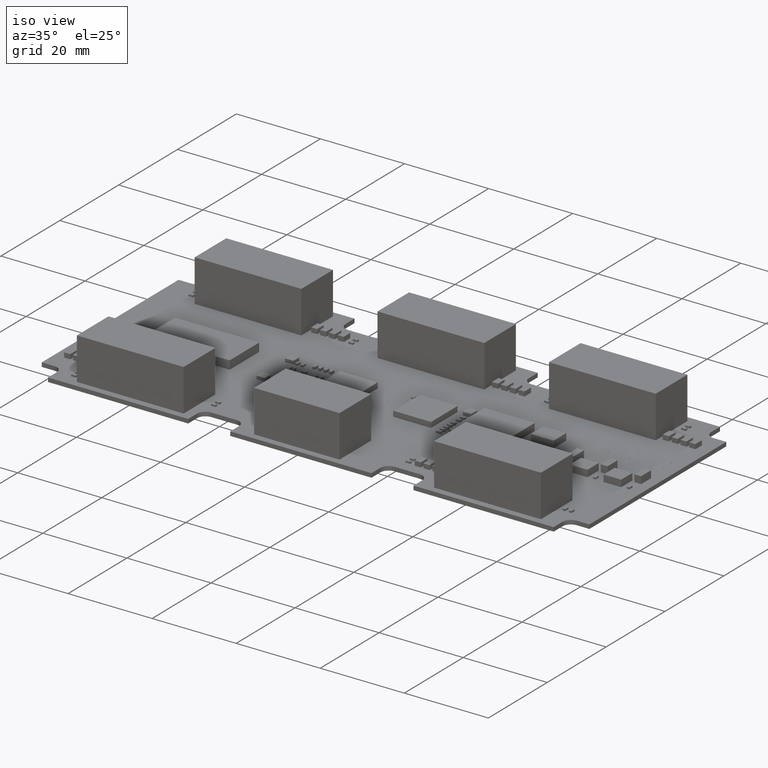
[diagram: clean part render]
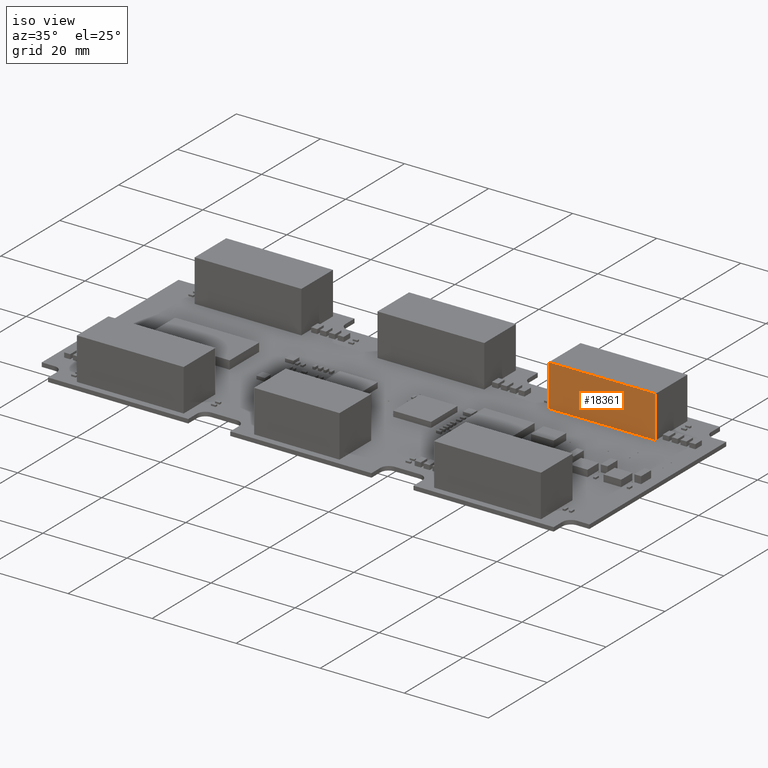
[diagram: same view with one face highlighted and labeled with its STEP entity id]
A machine part, iso view. The second image highlights one B-rep face of the part: STEP entity #18361.
In plain terms, the highlighted planar face has unit normal (0, -1, 0).
Its self-contained STEP definition (entity closure, byte-faithful):
#18263 = EDGE_CURVE('',#18264,#18266,#18268,.T.);
#18264 = VERTEX_POINT('',#18265);
#18265 = CARTESIAN_POINT('',(-12.699492,-5.36949142,0.E+000));
#18266 = VERTEX_POINT('',#18267);
#18267 = CARTESIAN_POINT('',(-12.699492,-5.36949142,10.00000032));
#18268 = LINE('',#18269,#18270);
#18269 = CARTESIAN_POINT('',(-12.699492,-5.36949142,0.E+000));
#18270 = VECTOR('',#18271,1.);
#18271 = DIRECTION('',(0.E+000,0.E+000,1.));
#18336 = VERTEX_POINT('',#18337);
#18337 = CARTESIAN_POINT('',(12.699492,-5.36949142,10.00000032));
#18343 = EDGE_CURVE('',#18344,#18336,#18346,.T.);
#18344 = VERTEX_POINT('',#18345);
#18345 = CARTESIAN_POINT('',(12.699492,-5.36949142,0.E+000));
#18346 = LINE('',#18347,#18348);
#18347 = CARTESIAN_POINT('',(12.699492,-5.36949142,0.E+000));
#18348 = VECTOR('',#18349,1.);
#18349 = DIRECTION('',(0.E+000,0.E+000,1.));
#18361 = ADVANCED_FACE('',(#18362),#18378,.T.);
#18362 = FACE_BOUND('',#18363,.T.);
#18363 = EDGE_LOOP('',(#18364,#18365,#18371,#18372));
#18364 = ORIENTED_EDGE('',*,*,#18343,.T.);
#18365 = ORIENTED_EDGE('',*,*,#18366,.T.);
#18366 = EDGE_CURVE('',#18336,#18266,#18367,.T.);
#18367 = LINE('',#18368,#18369);
#18368 = CARTESIAN_POINT('',(12.699492,-5.36949142,10.00000032));
#18369 = VECTOR('',#18370,1.);
#18370 = DIRECTION('',(-1.,0.E+000,0.E+000));
#18371 = ORIENTED_EDGE('',*,*,#18263,.F.);
#18372 = ORIENTED_EDGE('',*,*,#18373,.F.);
#18373 = EDGE_CURVE('',#18344,#18264,#18374,.T.);
#18374 = LINE('',#18375,#18376);
#18375 = CARTESIAN_POINT('',(12.699492,-5.36949142,0.E+000));
#18376 = VECTOR('',#18377,1.);
#18377 = DIRECTION('',(-1.,0.E+000,0.E+000));
#18378 = PLANE('',#18379);
#18379 = AXIS2_PLACEMENT_3D('',#18380,#18381,#18382);
#18380 = CARTESIAN_POINT('',(12.699492,-5.36949142,0.E+000));
#18381 = DIRECTION('',(0.E+000,-1.,0.E+000));
#18382 = DIRECTION('',(-1.,0.E+000,0.E+000));